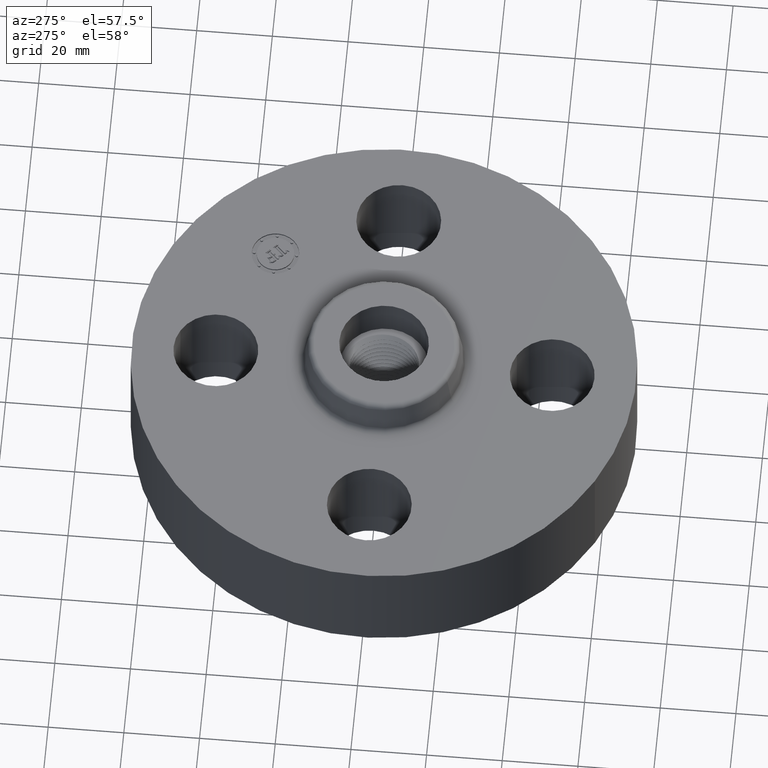
[diagram: clean part render]
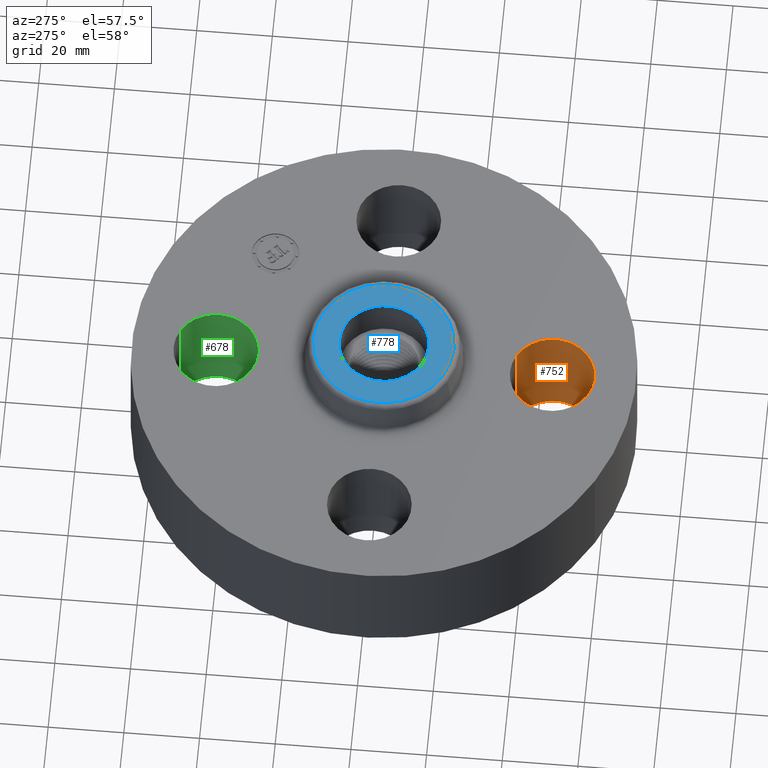
[diagram: same view with three faces highlighted in distinct colors, each labeled with its STEP entity id]
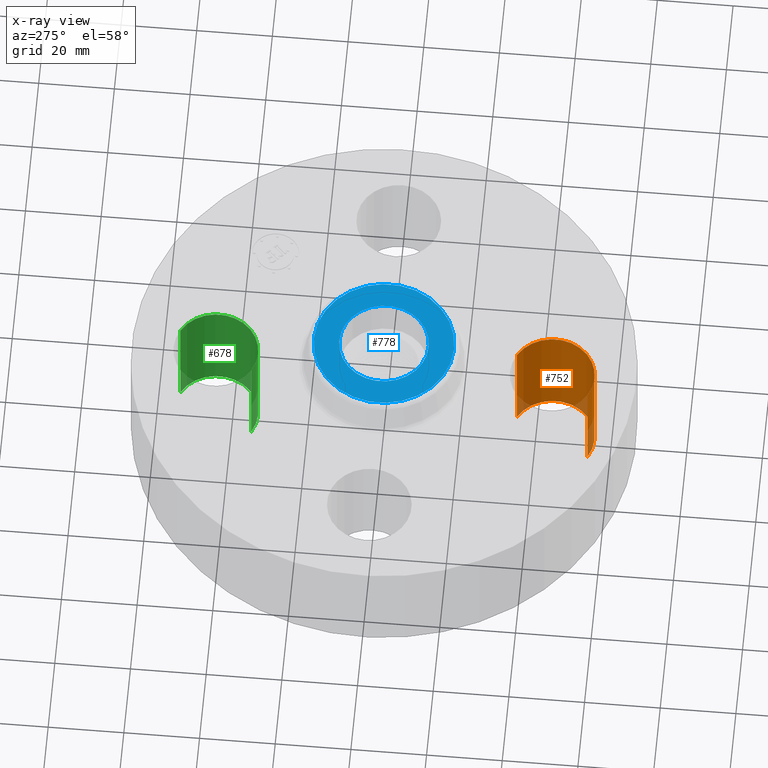
[diagram: x-ray of the same camera — body ghosted, the three highlighted faces saturated]
A machine part, auxiliary view with three faces highlighted in distinct colors.
The next image is the same camera in x-ray (body ghosted, the three faces saturated) — at least one of them is partly hidden behind the body in this view.
Their STEP definitions:

[orange] entity #752 — the highlighted cylindrical surface (partial cylindrical patch) has radius 11.176 mm, axis along (0, -0, -1).
#311=AXIS2_PLACEMENT_3D('Circle Axis2P3D',#309,#310,$) ;
#725=AXIS2_PLACEMENT_3D('Cylinder Axis2P3D',#722,#723,#724) ;
#743=AXIS2_PLACEMENT_3D('Circle Axis2P3D',#741,#742,$) ;
#309=CARTESIAN_POINT('Axis2P3D Location',(1.74838271595E-016,-1.75000000001,0.)) ;
#313=CARTESIAN_POINT('Vertex',(0.210947236987,-1.36386367277,0.)) ;
#315=CARTESIAN_POINT('Vertex',(-0.210947236987,-2.13613632724,0.)) ;
#722=CARTESIAN_POINT('Axis2P3D Location',(1.07156594926E-016,-1.75000000001,1.18606299213)) ;
#727=CARTESIAN_POINT('Line Origine',(0.210947236987,-1.36386367277,0.595000000002)) ;
#731=CARTESIAN_POINT('Vertex',(0.210947236987,-1.36386367277,1.19)) ;
#734=CARTESIAN_POINT('Line Origine',(-0.210947236987,-2.13613632724,0.595000000002)) ;
#738=CARTESIAN_POINT('Vertex',(-0.210947236987,-2.13613632724,1.19)) ;
#741=CARTESIAN_POINT('Axis2P3D Location',(1.07156594926E-016,-1.75000000001,1.19)) ;
#310=DIRECTION('Axis2P3D Direction',(0.,0.,-0.0393700787402)) ;
#723=DIRECTION('Axis2P3D Direction',(0.,-0.,-0.0393700787402)) ;
#724=DIRECTION('Axis2P3D XDirection',(-0.0188750212049,-0.0345504945626,0.)) ;
#728=DIRECTION('Vector Direction',(0.,0.,-0.0393700787402)) ;
#735=DIRECTION('Vector Direction',(0.,0.,-0.0393700787402)) ;
#742=DIRECTION('Axis2P3D Direction',(0.,-0.,-0.0393700787402)) ;
#729=VECTOR('Line Direction',#728,0.0393700787402) ;
#736=VECTOR('Line Direction',#735,0.0393700787402) ;
#747=ORIENTED_EDGE('',*,*,#733,.F.) ;
#748=ORIENTED_EDGE('',*,*,#317,.T.) ;
#749=ORIENTED_EDGE('',*,*,#740,.T.) ;
#750=ORIENTED_EDGE('',*,*,#745,.F.) ;
#752=ADVANCED_FACE('PartBody',(#751),#726,.F.) ;
#312=CIRCLE('generated circle',#311,0.440000000002) ;
#744=CIRCLE('generated circle',#743,0.440000000002) ;
#726=CYLINDRICAL_SURFACE('generated cylinder',#725,0.440000000002) ;
#317=EDGE_CURVE('',#314,#316,#312,.T.) ;
#733=EDGE_CURVE('',#314,#732,#730,.F.) ;
#740=EDGE_CURVE('',#316,#739,#737,.F.) ;
#745=EDGE_CURVE('',#732,#739,#744,.T.) ;
#746=EDGE_LOOP('',(#747,#748,#749,#750)) ;
#751=FACE_OUTER_BOUND('',#746,.T.) ;
#730=LINE('Line',#727,#729) ;
#737=LINE('Line',#734,#736) ;
#314=VERTEX_POINT('',#313) ;
#316=VERTEX_POINT('',#315) ;
#732=VERTEX_POINT('',#731) ;
#739=VERTEX_POINT('',#738) ;

[blue] entity #778 — the highlighted planar face has unit normal (0, 0, -1).
#371=AXIS2_PLACEMENT_3D('Circle Axis2P3D',#369,#370,$) ;
#397=AXIS2_PLACEMENT_3D('Circle Axis2P3D',#395,#396,$) ;
#607=AXIS2_PLACEMENT_3D('Circle Axis2P3D',#605,#606,$) ;
#626=AXIS2_PLACEMENT_3D('Circle Axis2P3D',#624,#625,$) ;
#768=AXIS2_PLACEMENT_3D('Plane Axis2P3D',#765,#766,#767) ;
#369=CARTESIAN_POINT('Axis2P3D Location',(0.,0.,1.56000000001)) ;
#373=CARTESIAN_POINT('Vertex',(-0.222932875452,0.408075891281,1.56000000001)) ;
#375=CARTESIAN_POINT('Vertex',(0.222932875452,-0.408075891281,1.56000000001)) ;
#395=CARTESIAN_POINT('Axis2P3D Location',(0.,0.,1.56000000001)) ;
#602=CARTESIAN_POINT('Vertex',(0.349699239217,0.640120163679,1.56000000001)) ;
#605=CARTESIAN_POINT('Axis2P3D Location',(0.,0.,1.56000000001)) ;
#609=CARTESIAN_POINT('Vertex',(-0.349699239217,-0.640120163679,1.56000000001)) ;
#624=CARTESIAN_POINT('Axis2P3D Location',(0.,0.,1.56000000001)) ;
#765=CARTESIAN_POINT('Axis2P3D Location',(0.,0.72941303927,1.56000000001)) ;
#370=DIRECTION('Axis2P3D Direction',(0.,0.,0.0393700787402)) ;
#396=DIRECTION('Axis2P3D Direction',(0.,0.,0.0393700787402)) ;
#606=DIRECTION('Axis2P3D Direction',(0.,0.,-0.0393700787402)) ;
#625=DIRECTION('Axis2P3D Direction',(0.,0.,-0.0393700787402)) ;
#766=DIRECTION('Axis2P3D Direction',(0.,0.,-0.0393700787402)) ;
#767=DIRECTION('Axis2P3D XDirection',(0.0393700787402,0.,0.)) ;
#771=ORIENTED_EDGE('',*,*,#611,.F.) ;
#772=ORIENTED_EDGE('',*,*,#628,.F.) ;
#775=ORIENTED_EDGE('',*,*,#377,.T.) ;
#776=ORIENTED_EDGE('',*,*,#399,.T.) ;
#777=FACE_BOUND('',#774,.T.) ;
#778=ADVANCED_FACE('PartBody',(#773,#777),#769,.F.) ;
#372=CIRCLE('generated circle',#371,0.465000000002) ;
#398=CIRCLE('generated circle',#397,0.465000000002) ;
#608=CIRCLE('generated circle',#607,0.72941303927) ;
#627=CIRCLE('generated circle',#626,0.72941303927) ;
#377=EDGE_CURVE('',#374,#376,#372,.F.) ;
#399=EDGE_CURVE('',#376,#374,#398,.F.) ;
#611=EDGE_CURVE('',#603,#610,#608,.T.) ;
#628=EDGE_CURVE('',#610,#603,#627,.T.) ;
#770=EDGE_LOOP('',(#771,#772)) ;
#774=EDGE_LOOP('',(#775,#776)) ;
#773=FACE_OUTER_BOUND('',#770,.T.) ;
#769=PLANE('',#768) ;
#374=VERTEX_POINT('',#373) ;
#376=VERTEX_POINT('',#375) ;
#603=VERTEX_POINT('',#602) ;
#610=VERTEX_POINT('',#609) ;

[green] entity #678 — the highlighted cylindrical surface (partial cylindrical patch) has radius 11.176 mm, axis along (0, 0, -1).
#356=AXIS2_PLACEMENT_3D('Circle Axis2P3D',#354,#355,$) ;
#639=AXIS2_PLACEMENT_3D('Cylinder Axis2P3D',#636,#637,#638) ;
#669=AXIS2_PLACEMENT_3D('Circle Axis2P3D',#667,#668,$) ;
#349=CARTESIAN_POINT('Vertex',(-0.210947236987,1.36386367277,0.)) ;
#351=CARTESIAN_POINT('Vertex',(0.210947236987,2.13613632724,0.)) ;
#354=CARTESIAN_POINT('Axis2P3D Location',(-3.1470888887E-016,1.75000000001,0.)) ;
#636=CARTESIAN_POINT('Axis2P3D Location',(-3.21469784777E-016,1.75000000001,1.18606299213)) ;
#641=CARTESIAN_POINT('Line Origine',(-0.210947236987,1.36386367277,0.595000000002)) ;
#645=CARTESIAN_POINT('Vertex',(-0.210947236987,1.36386367277,1.19)) ;
#648=CARTESIAN_POINT('Line Origine',(0.210947236987,2.13613632724,0.595000000002)) ;
#652=CARTESIAN_POINT('Vertex',(0.210947236987,2.13613632724,1.19)) ;
#667=CARTESIAN_POINT('Axis2P3D Location',(-3.21469784777E-016,1.75000000001,1.19)) ;
#355=DIRECTION('Axis2P3D Direction',(0.,0.,-0.0393700787402)) ;
#637=DIRECTION('Axis2P3D Direction',(0.,0.,-0.0393700787402)) ;
#638=DIRECTION('Axis2P3D XDirection',(0.0188750212049,0.0345504945626,0.)) ;
#642=DIRECTION('Vector Direction',(0.,0.,-0.0393700787402)) ;
#649=DIRECTION('Vector Direction',(0.,0.,-0.0393700787402)) ;
#668=DIRECTION('Axis2P3D Direction',(0.,0.,-0.0393700787402)) ;
#643=VECTOR('Line Direction',#642,0.0393700787402) ;
#650=VECTOR('Line Direction',#649,0.0393700787402) ;
#673=ORIENTED_EDGE('',*,*,#654,.F.) ;
#674=ORIENTED_EDGE('',*,*,#358,.T.) ;
#675=ORIENTED_EDGE('',*,*,#647,.T.) ;
#676=ORIENTED_EDGE('',*,*,#671,.F.) ;
#678=ADVANCED_FACE('PartBody',(#677),#640,.F.) ;
#357=CIRCLE('generated circle',#356,0.440000000002) ;
#670=CIRCLE('generated circle',#669,0.440000000002) ;
#640=CYLINDRICAL_SURFACE('generated cylinder',#639,0.440000000002) ;
#358=EDGE_CURVE('',#352,#350,#357,.T.) ;
#647=EDGE_CURVE('',#350,#646,#644,.F.) ;
#654=EDGE_CURVE('',#352,#653,#651,.F.) ;
#671=EDGE_CURVE('',#653,#646,#670,.T.) ;
#672=EDGE_LOOP('',(#673,#674,#675,#676)) ;
#677=FACE_OUTER_BOUND('',#672,.T.) ;
#644=LINE('Line',#641,#643) ;
#651=LINE('Line',#648,#650) ;
#350=VERTEX_POINT('',#349) ;
#352=VERTEX_POINT('',#351) ;
#646=VERTEX_POINT('',#645) ;
#653=VERTEX_POINT('',#652) ;